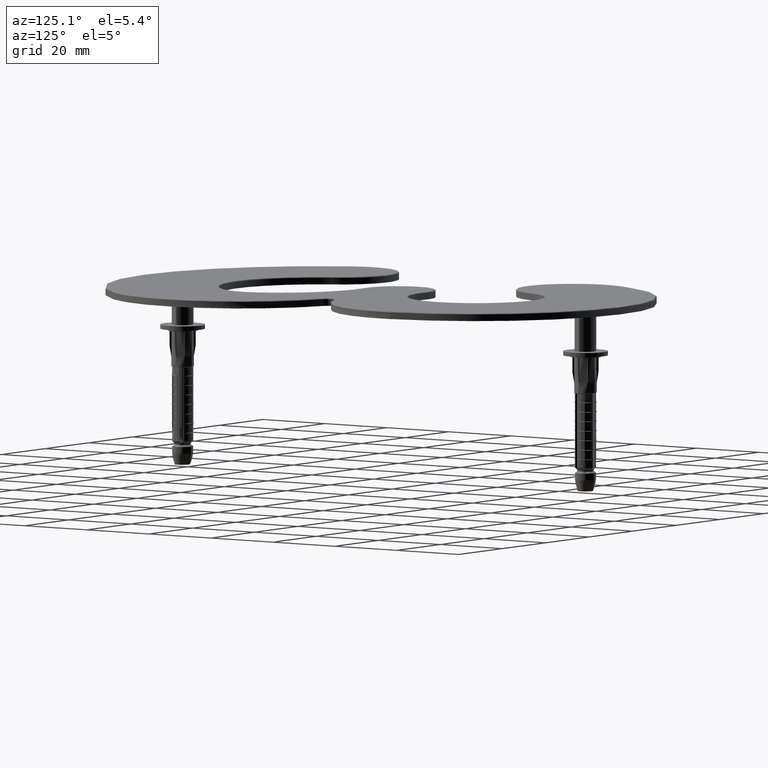
[diagram: clean part render]
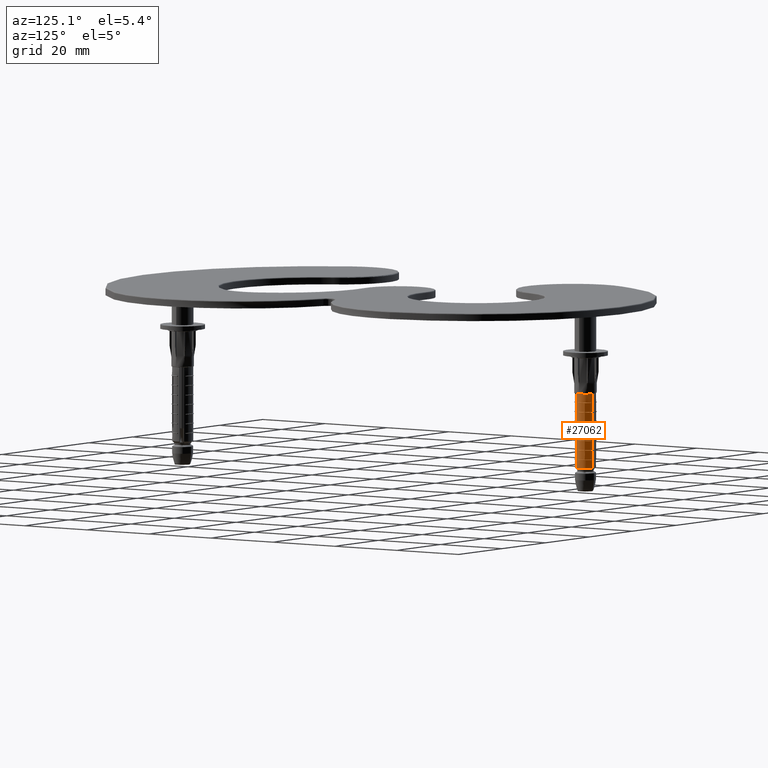
[diagram: same view with one face highlighted and labeled with its STEP entity id]
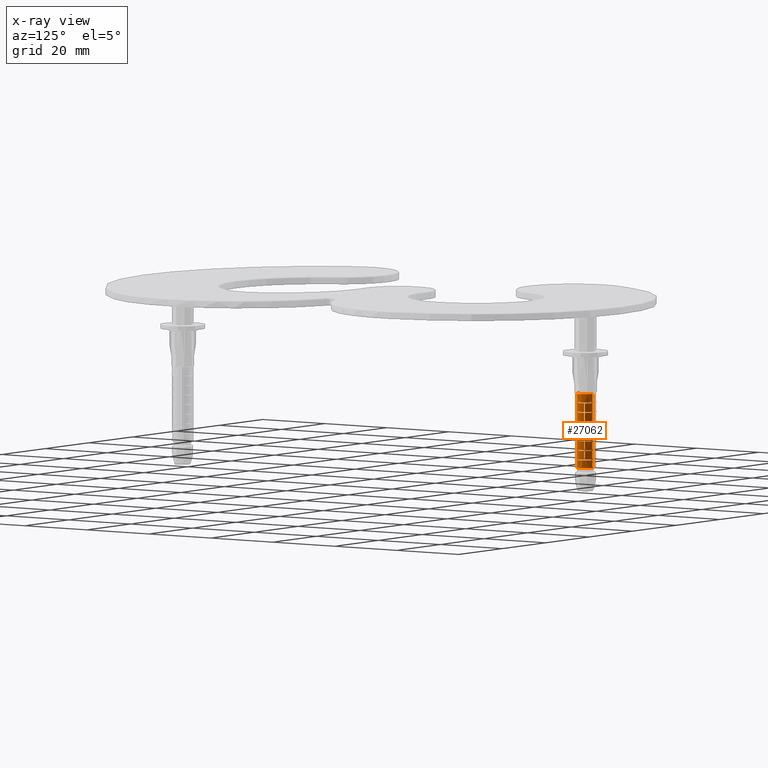
[diagram: x-ray of the same camera — body ghosted, the highlighted face saturated]
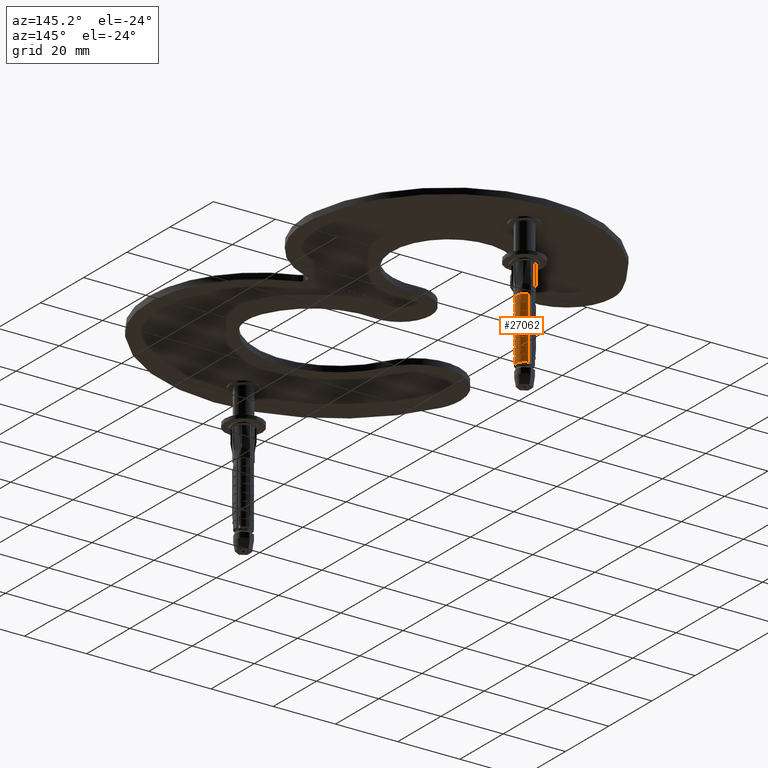
[diagram: same view with one face highlighted and labeled with its STEP entity id]
A machine part, auxiliary view. The second image highlights one B-rep face of the part: STEP entity #27062.
The next image is the same camera in x-ray: the body ghosted, the highlighted face saturated — about 0% of this face is hidden behind the body in this view.
A second angle (auxiliary view) of the same face is appended — the face is thin or edge-on in the first view.
In plain terms, the highlighted cylindrical surface (edge-blend (fillet) strip) has radius 2.8 mm, axis along (0, 0, -1).
Its self-contained STEP definition (entity closure, byte-faithful):
#65 = AXIS2_PLACEMENT_3D ( 'NONE', #25429, #28501, #15613 ) ;
#173 = CIRCLE ( 'NONE', #17702, 2.799999999999999822 ) ;
#268 = EDGE_CURVE ( 'NONE', #26986, #39906, #3357, .T. ) ;
#352 = ORIENTED_EDGE ( 'NONE', *, *, #16578, .T. ) ;
#477 = LINE ( 'NONE', #7648, #12536 ) ;
#674 = EDGE_CURVE ( 'NONE', #8486, #21390, #30721, .T. ) ;
#730 = EDGE_CURVE ( 'NONE', #33540, #10104, #6215, .T. ) ;
#837 = CARTESIAN_POINT ( 'NONE',  ( -2.483748580118025018, -1.292668940897744312, -26.50506116889642172 ) ) ;
#971 = CARTESIAN_POINT ( 'NONE',  ( -2.467480486578948362, -1.323477802777908829, -27.28203077829557088 ) ) ;
#988 = VECTOR ( 'NONE', #21612, 1000.000000000000000 ) ;
#1128 = EDGE_CURVE ( 'NONE', #7125, #19105, #32673, .T. ) ;
#1188 = VERTEX_POINT ( 'NONE', #20855 ) ;
#1309 = EDGE_CURVE ( 'NONE', #39906, #13116, #28770, .T. ) ;
#1331 = CARTESIAN_POINT ( 'NONE',  ( -1.016432192480564156, -2.608997048309782407, -15.05000000000000071 ) ) ;
#1385 = ORIENTED_EDGE ( 'NONE', *, *, #8401, .T. ) ;
#1460 = VERTEX_POINT ( 'NONE', #35490 ) ;
#1509 = CARTESIAN_POINT ( 'NONE',  ( 0.000000000000000000, -2.449293598294708880E-16, -36.00000000000000000 ) ) ;
#1647 = CARTESIAN_POINT ( 'NONE',  ( -2.361358431559908322, -1.504654896546355980, -12.52500000000000213 ) ) ;
#1967 = CARTESIAN_POINT ( 'NONE',  ( 1.256626439908438660E-16, -1.157380840337134382E-16, -27.67499999999999361 ) ) ;
#2004 = DIRECTION ( 'NONE',  ( 0.8660254037844433705, 0.4999999999999920064, 0.000000000000000000 ) ) ;
#2030 = CIRCLE ( 'NONE', #16887, 2.799999999999999378 ) ;
#2121 = CARTESIAN_POINT ( 'NONE',  ( -2.361358431559908322, -1.504654896546355980, -17.57499999999999929 ) ) ;
#2165 = EDGE_CURVE ( 'NONE', #9385, #20533, #12363, .T. ) ;
#2203 = VECTOR ( 'NONE', #31110, 1000.000000000000000 ) ;
#2243 = DIRECTION ( 'NONE',  ( 0.8660254037844433705, 0.4999999999999920064, 0.000000000000000000 ) ) ;
#2307 = VERTEX_POINT ( 'NONE', #2121 ) ;
#2333 = ORIENTED_EDGE ( 'NONE', *, *, #19314, .T. ) ;
#2405 = CARTESIAN_POINT ( 'NONE',  ( -2.369438809451833272, -1.491903281495504885, -26.99099585964414771 ) ) ;
#2451 = EDGE_CURVE ( 'NONE', #24245, #20029, #26290, .T. ) ;
#2594 = CARTESIAN_POINT ( 'NONE',  ( 5.687171150805130437E-17, -5.238010849222262684E-17, -12.52500000000000213 ) ) ;
#2803 = CARTESIAN_POINT ( 'NONE',  ( -2.361358431559908766, -1.504654896546356424, -26.31052289814725853 ) ) ;
#2845 = ORIENTED_EDGE ( 'NONE', *, *, #9580, .T. ) ;
#3001 = AXIS2_PLACEMENT_3D ( 'NONE', #31804, #13402, #22990 ) ;
#3014 = ORIENTED_EDGE ( 'NONE', *, *, #9098, .F. ) ;
#3093 = FACE_BOUND ( 'NONE', #24184, .T. ) ;
#3295 = VECTOR ( 'NONE', #10783, 1000.000000000000000 ) ;
#3357 = CIRCLE ( 'NONE', #65, 2.799999999999999378 ) ;
#3374 = DIRECTION ( 'NONE',  ( -0.000000000000000000, -6.803593328596414068E-18, -1.000000000000000000 ) ) ;
#3501 = CARTESIAN_POINT ( 'NONE',  ( -2.767673818475161696, 0.4242424242424543968, -22.42499999999999716 ) ) ;
#3755 = CARTESIAN_POINT ( 'NONE',  ( -2.483748580117768778, -1.292668940898234364, -12.52500000000000213 ) ) ;
#3781 = CARTESIAN_POINT ( 'NONE',  ( -2.361358431559908766, -1.504654896546356424, -25.14999999999999858 ) ) ;
#4007 = CARTESIAN_POINT ( 'NONE',  ( -2.767673818475162140, 0.4242424242424544523, -36.00000000000000000 ) ) ;
#4138 = AXIS2_PLACEMENT_3D ( 'NONE', #23589, #17814, #11181 ) ;
#4153 = ORIENTED_EDGE ( 'NONE', *, *, #31916, .F. ) ;
#4176 = CARTESIAN_POINT ( 'NONE',  ( -2.460687915453515284, -1.336044528726880287, -24.94999999999999574 ) ) ;
#4200 = VECTOR ( 'NONE', #13384, 1000.000000000000000 ) ;
#4262 = DIRECTION ( 'NONE',  ( -0.000000000000000000, -6.803593328596414068E-18, -1.000000000000000000 ) ) ;
#4265 = DIRECTION ( 'NONE',  ( 0.000000000000000000, 1.000000000000000000, 0.000000000000000000 ) ) ;
#4479 = CARTESIAN_POINT ( 'NONE',  ( -2.483748580117769222, -1.292668940898235030, -36.00000000000000000 ) ) ;
#4537 = CARTESIAN_POINT ( 'NONE',  ( -2.767673818475162140, 0.4242424242424546188, -36.00000000000000000 ) ) ;
#4556 = DIRECTION ( 'NONE',  ( -4.540655609425253692E-18, 4.182044590197414905E-18, 1.000000000000000000 ) ) ;
#4720 = ORIENTED_EDGE ( 'NONE', *, *, #26005, .F. ) ;
#4793 = CARTESIAN_POINT ( 'NONE',  ( -2.767673818475162140, 0.4242424242424544523, -22.62500000000000000 ) ) ;
#4987 = ORIENTED_EDGE ( 'NONE', *, *, #5183, .T. ) ;
#5183 = EDGE_CURVE ( 'NONE', #6610, #18617, #173, .T. ) ;
#5445 = CIRCLE ( 'NONE', #3001, 2.799999999999999378 ) ;
#5508 = EDGE_CURVE ( 'NONE', #14026, #32257, #6935, .T. ) ;
#5527 = ORIENTED_EDGE ( 'NONE', *, *, #2165, .T. ) ;
#5540 = DIRECTION ( 'NONE',  ( -4.540655609425253692E-18, 4.182044590197414905E-18, 1.000000000000000000 ) ) ;
#5637 = DIRECTION ( 'NONE',  ( 0.000000000000000000, 1.000000000000000000, 0.000000000000000000 ) ) ;
#5903 = DIRECTION ( 'NONE',  ( -0.000000000000000000, -6.803593328596413297E-18, -1.000000000000000000 ) ) ;
#5998 = VERTEX_POINT ( 'NONE', #4176 ) ;
#6009 = CARTESIAN_POINT ( 'NONE',  ( -2.361358431559909210, -1.504654896546356424, -36.00000000000000000 ) ) ;
#6035 = CARTESIAN_POINT ( 'NONE',  ( 1.018242020413613022E-16, -9.378234993517700759E-17, -22.42499999999999716 ) ) ;
#6215 = CIRCLE ( 'NONE', #28154, 2.799999999999999822 ) ;
#6226 = DIRECTION ( 'NONE',  ( 0.000000000000000000, 6.803593328596414068E-18, 1.000000000000000000 ) ) ;
#6537 = EDGE_CURVE ( 'NONE', #22645, #33295, #29464, .T. ) ;
#6576 = CARTESIAN_POINT ( 'NONE',  ( -2.767673818475162140, 0.4242424242424543412, -36.00000000000000000 ) ) ;
#6610 = VERTEX_POINT ( 'NONE', #26979 ) ;
#6687 = CARTESIAN_POINT ( 'NONE',  ( -2.361358431559909210, -1.504654896546356424, -36.00000000000000000 ) ) ;
#6719 = AXIS2_PLACEMENT_3D ( 'NONE', #32496, #38721, #2004 ) ;
#6763 = LINE ( 'NONE', #7407, #17343 ) ;
#6779 = CARTESIAN_POINT ( 'NONE',  ( -2.482270526863567195, -1.295529128873127211, -26.69959461916819521 ) ) ;
#6786 = LINE ( 'NONE', #35605, #23167 ) ;
#6834 = DIRECTION ( 'NONE',  ( -4.540655609425253692E-18, 4.182044590197414905E-18, 1.000000000000000000 ) ) ;
#6935 = CIRCLE ( 'NONE', #29036, 2.799999999999999822 ) ;
#6978 = CARTESIAN_POINT ( 'NONE',  ( 1.132893574551600419E-16, -1.043420125254254854E-16, -24.94999999999999574 ) ) ;
#6991 = EDGE_CURVE ( 'NONE', #33295, #32444, #38094, .T. ) ;
#7048 = VERTEX_POINT ( 'NONE', #28702 ) ;
#7124 = CARTESIAN_POINT ( 'NONE',  ( 6.833686692185005643E-17, -6.293977108247109848E-17, -15.05000000000000071 ) ) ;
#7125 = VERTEX_POINT ( 'NONE', #22707 ) ;
#7248 = VECTOR ( 'NONE', #22757, 1000.000000000000000 ) ;
#7403 = ORIENTED_EDGE ( 'NONE', *, *, #30105, .T. ) ;
#7407 = CARTESIAN_POINT ( 'NONE',  ( -2.361358431559909210, -1.504654896546356424, -36.00000000000000000 ) ) ;
#7536 = DIRECTION ( 'NONE',  ( 0.000000000000000000, 6.803593328596414068E-18, 1.000000000000000000 ) ) ;
#7589 = CARTESIAN_POINT ( 'NONE',  ( -2.393379353113320729, -1.453181087163902374, -27.47499999999999076 ) ) ;
#7648 = CARTESIAN_POINT ( 'NONE',  ( -2.767673818475162140, 0.4242424242424546743, -36.00000000000000000 ) ) ;
#7763 = CIRCLE ( 'NONE', #22651, 2.799999999999999378 ) ;
#7881 = CARTESIAN_POINT ( 'NONE',  ( -2.767673818475161251, 0.4242424242424545078, -17.37499999999999645 ) ) ;
#7908 = CARTESIAN_POINT ( 'NONE',  ( -2.483748580117768778, -1.292668940898234364, -14.84999999999999964 ) ) ;
#8028 = DIRECTION ( 'NONE',  ( -4.540655609425253692E-18, 4.182044590197414905E-18, 1.000000000000000000 ) ) ;
#8113 = DIRECTION ( 'NONE',  ( 0.000000000000000000, 1.000000000000000000, 0.000000000000000000 ) ) ;
#8122 = CARTESIAN_POINT ( 'NONE',  ( -1.016432192480563490, -2.608997048309781519, -27.47499999999999076 ) ) ;
#8151 = DIRECTION ( 'NONE',  ( 0.8660254037844433705, 0.4999999999999920064, 0.000000000000000000 ) ) ;
#8401 = EDGE_CURVE ( 'NONE', #8996, #31322, #15409, .T. ) ;
#8450 = CARTESIAN_POINT ( 'NONE',  ( -2.379905641839956676, -1.475161883330798451, -27.28203077829503442 ) ) ;
#8475 = EDGE_CURVE ( 'NONE', #24148, #20029, #6786, .T. ) ;
#8486 = VERTEX_POINT ( 'NONE', #20340 ) ;
#8502 = VERTEX_POINT ( 'NONE', #1331 ) ;
#8555 = VERTEX_POINT ( 'NONE', #35186 ) ;
#8624 = DIRECTION ( 'NONE',  ( -4.540655609425253692E-18, 4.182044590197414905E-18, 1.000000000000000000 ) ) ;
#8650 = LINE ( 'NONE', #32294, #31224 ) ;
#8725 = CARTESIAN_POINT ( 'NONE',  ( -2.372170073811461055, -1.487569355360297108, -27.08807541499458083 ) ) ;
#8752 = CARTESIAN_POINT ( 'NONE',  ( 1.027323331632463865E-16, -9.461875885321650721E-17, -22.62500000000000000 ) ) ;
#8765 = VECTOR ( 'NONE', #38230, 1000.000000000000000 ) ;
#8996 = VERTEX_POINT ( 'NONE', #29494 ) ;
#9051 = VERTEX_POINT ( 'NONE', #32932 ) ;
#9098 = EDGE_CURVE ( 'NONE', #34903, #12291, #26495, .T. ) ;
#9119 = CIRCLE ( 'NONE', #34537, 2.799999999999999378 ) ;
#9141 = ORIENTED_EDGE ( 'NONE', *, *, #16824, .T. ) ;
#9250 = ORIENTED_EDGE ( 'NONE', *, *, #32521, .T. ) ;
#9254 = DIRECTION ( 'NONE',  ( 0.000000000000000000, 6.803593328596414068E-18, 1.000000000000000000 ) ) ;
#9366 = VERTEX_POINT ( 'NONE', #19664 ) ;
#9382 = AXIS2_PLACEMENT_3D ( 'NONE', #33172, #5540, #30364 ) ;
#9385 = VERTEX_POINT ( 'NONE', #28483 ) ;
#9413 = EDGE_CURVE ( 'NONE', #27152, #8502, #10121, .T. ) ;
#9580 = EDGE_CURVE ( 'NONE', #12042, #5998, #38997, .T. ) ;
#9604 = CARTESIAN_POINT ( 'NONE',  ( -2.476745546490385141, -1.306042560950300802, -26.99099585964534498 ) ) ;
#9721 = EDGE_CURVE ( 'NONE', #26193, #8996, #11052, .T. ) ;
#9760 = CARTESIAN_POINT ( 'NONE',  ( 1.018242020413613022E-16, -9.378234993517700759E-17, -22.42499999999999716 ) ) ;
#9799 = EDGE_CURVE ( 'NONE', #29342, #15472, #27434, .T. ) ;
#9890 = VERTEX_POINT ( 'NONE', #3501 ) ;
#9975 = DIRECTION ( 'NONE',  ( 0.8660254037844433705, 0.4999999999999920064, 0.000000000000000000 ) ) ;
#9984 = CARTESIAN_POINT ( 'NONE',  ( -2.455181414339814072, -1.346136777107122207, -27.47499999999999076 ) ) ;
#10038 = DIRECTION ( 'NONE',  ( -4.540655609425253692E-18, 4.182044590197414905E-18, 1.000000000000000000 ) ) ;
#10040 = EDGE_CURVE ( 'NONE', #16712, #26986, #477, .T. ) ;
#10104 = VERTEX_POINT ( 'NONE', #35033 ) ;
#10121 = CIRCLE ( 'NONE', #24764, 2.799999999999999378 ) ;
#10133 = DIRECTION ( 'NONE',  ( -5.892084659582852829E-18, -1.020538999289456486E-17, -1.000000000000000000 ) ) ;
#10163 = CIRCLE ( 'NONE', #14129, 2.799999999999999378 ) ;
#10195 = ORIENTED_EDGE ( 'NONE', *, *, #23270, .T. ) ;
#10252 = ORIENTED_EDGE ( 'NONE', *, *, #26898, .T. ) ;
#10279 = DIRECTION ( 'NONE',  ( 0.8660254037844433705, 0.4999999999999920064, 0.000000000000000000 ) ) ;
#10296 = EDGE_CURVE ( 'NONE', #21646, #25433, #17813, .T. ) ;
#10439 = CARTESIAN_POINT ( 'NONE',  ( 1.132893574551600419E-16, -1.043420125254254854E-16, -24.94999999999999574 ) ) ;
#10443 = EDGE_CURVE ( 'NONE', #2307, #8486, #37469, .T. ) ;
#10475 = ORIENTED_EDGE ( 'NONE', *, *, #9413, .F. ) ;
#10580 = DIRECTION ( 'NONE',  ( -4.540655609425253692E-18, 4.182044590197414905E-18, 1.000000000000000000 ) ) ;
#10583 = VECTOR ( 'NONE', #3374, 1000.000000000000000 ) ;
#10676 = EDGE_CURVE ( 'NONE', #8555, #37857, #8650, .T. ) ;
#10783 = DIRECTION ( 'NONE',  ( 0.000000000000000000, 6.803593328596414068E-18, 1.000000000000000000 ) ) ;
#10805 = CARTESIAN_POINT ( 'NONE',  ( 1.141974885770451016E-16, -1.051784214434649850E-16, -25.14999999999999858 ) ) ;
#10885 = CARTESIAN_POINT ( 'NONE',  ( -2.767673818475162140, 0.4242424242424546743, -36.00000000000000000 ) ) ;
#11026 = EDGE_CURVE ( 'NONE', #16712, #33995, #9119, .T. ) ;
#11052 = CIRCLE ( 'NONE', #17056, 2.799999999999999822 ) ;
#11117 = VECTOR ( 'NONE', #17373, 1000.000000000000000 ) ;
#11140 = CARTESIAN_POINT ( 'NONE',  ( -2.361358431559909210, -1.504654896546356424, -36.00000000000000000 ) ) ;
#11181 = DIRECTION ( 'NONE',  ( 0.8660254037844433705, 0.4999999999999920064, 0.000000000000000000 ) ) ;
#11275 = CARTESIAN_POINT ( 'NONE',  ( 7.889389121376377345E-17, -7.266302475468007665E-17, -17.37499999999999645 ) ) ;
#11370 = AXIS2_PLACEMENT_3D ( 'NONE', #6035, #27659, #15407 ) ;
#11669 = AXIS2_PLACEMENT_3D ( 'NONE', #2594, #20913, #30396 ) ;
#11748 = ORIENTED_EDGE ( 'NONE', *, *, #39843, .T. ) ;
#12030 = LINE ( 'NONE', #11140, #28375 ) ;
#12042 = VERTEX_POINT ( 'NONE', #13326 ) ;
#12059 = CARTESIAN_POINT ( 'NONE',  ( -2.363096400378637441, -1.501944770892664760, -26.69959461916634424 ) ) ;
#12218 = AXIS2_PLACEMENT_3D ( 'NONE', #1509, #29197, #8113 ) ;
#12221 = ORIENTED_EDGE ( 'NONE', *, *, #29528, .T. ) ;
#12291 = VERTEX_POINT ( 'NONE', #14779 ) ;
#12319 = VERTEX_POINT ( 'NONE', #38999 ) ;
#12348 = LINE ( 'NONE', #24659, #32988 ) ;
#12363 = CIRCLE ( 'NONE', #39819, 2.799999999999999378 ) ;
#12462 = EDGE_CURVE ( 'NONE', #10104, #5998, #37881, .T. ) ;
#12536 = VECTOR ( 'NONE', #26464, 1000.000000000000000 ) ;
#12617 = VECTOR ( 'NONE', #30154, 1000.000000000000000 ) ;
#12994 = EDGE_CURVE ( 'NONE', #9051, #39492, #30869, .T. ) ;
#13105 = VECTOR ( 'NONE', #22409, 1000.000000000000000 ) ;
#13116 = VERTEX_POINT ( 'NONE', #3755 ) ;
#13175 = DIRECTION ( 'NONE',  ( -4.540655609425253692E-18, 4.182044590197414905E-18, 1.000000000000000000 ) ) ;
#13217 = EDGE_CURVE ( 'NONE', #28055, #12319, #23313, .T. ) ;
#13271 = CARTESIAN_POINT ( 'NONE',  ( 0.000000000000000000, -2.024069015257432827E-16, -29.74999999999999645 ) ) ;
#13326 = CARTESIAN_POINT ( 'NONE',  ( -2.767673818475161696, 0.4242424242424543968, -24.94999999999999574 ) ) ;
#13384 = DIRECTION ( 'NONE',  ( 0.000000000000000000, 6.803593328596414068E-18, 1.000000000000000000 ) ) ;
#13402 = DIRECTION ( 'NONE',  ( -4.540655609425253692E-18, 4.182044590197414905E-18, 1.000000000000000000 ) ) ;
#13478 = CIRCLE ( 'NONE', #39650, 2.799999999999999378 ) ;
#13533 = DIRECTION ( 'NONE',  ( 0.8660254037844433705, 0.4999999999999920064, 0.000000000000000000 ) ) ;
#13600 = ORIENTED_EDGE ( 'NONE', *, *, #23617, .T. ) ;
#13688 = B_SPLINE_CURVE_WITH_KNOTS ( 'NONE', 3,
 ( #9984, #34680, #971, #19184, #9604, #6779, #837, #37400 ),
 .UNSPECIFIED., .F., .F.,
 ( 4, 2, 2, 4 ),
 ( 0.000000000000000000, 0.0002919254474833850982, 0.0005838508949667701965, 0.001167701789933529768 ),
 .UNSPECIFIED. ) ;
#13910 = DIRECTION ( 'NONE',  ( -0.000000000000000000, -6.803593328596414068E-18, -1.000000000000000000 ) ) ;
#14026 = VERTEX_POINT ( 'NONE', #15331 ) ;
#14129 = AXIS2_PLACEMENT_3D ( 'NONE', #38898, #35915, #14550 ) ;
#14164 = EDGE_CURVE ( 'NONE', #27152, #22645, #25260, .T. ) ;
#14188 = VECTOR ( 'NONE', #33982, 1000.000000000000000 ) ;
#14355 = DIRECTION ( 'NONE',  ( 0.8660254037844433705, 0.4999999999999920064, 0.000000000000000000 ) ) ;
#14445 = DIRECTION ( 'NONE',  ( 0.8660254037844433705, 0.4999999999999920064, 0.000000000000000000 ) ) ;
#14481 = ORIENTED_EDGE ( 'NONE', *, *, #730, .F. ) ;
#14496 = CIRCLE ( 'NONE', #34707, 2.799999999999999822 ) ;
#14550 = DIRECTION ( 'NONE',  ( 0.8660254037844433705, 0.4999999999999920064, 0.000000000000000000 ) ) ;
#14779 = CARTESIAN_POINT ( 'NONE',  ( -1.016432192480563934, -2.608997048309782407, -22.62500000000000000 ) ) ;
#14890 = CARTESIAN_POINT ( 'NONE',  ( -2.483748580117769222, -1.292668940898234808, -25.14999999999999858 ) ) ;
#15331 = CARTESIAN_POINT ( 'NONE',  ( -2.361358431559908766, -1.504654896546356424, -20.10000000000000142 ) ) ;
#15407 = DIRECTION ( 'NONE',  ( 0.8660254037844433705, 0.4999999999999920064, 0.000000000000000000 ) ) ;
#15409 = LINE ( 'NONE', #34650, #7248 ) ;
#15440 = CARTESIAN_POINT ( 'NONE',  ( -1.016432192480563712, -2.608997048309782407, -36.00000000000000000 ) ) ;
#15471 = ORIENTED_EDGE ( 'NONE', *, *, #35741, .T. ) ;
#15472 = VERTEX_POINT ( 'NONE', #34025 ) ;
#15476 = VECTOR ( 'NONE', #4262, 1000.000000000000000 ) ;
#15508 = ORIENTED_EDGE ( 'NONE', *, *, #10443, .T. ) ;
#15613 = DIRECTION ( 'NONE',  ( 0.8660254037844433705, 0.4999999999999920064, 0.000000000000000000 ) ) ;
#15804 = CARTESIAN_POINT ( 'NONE',  ( -0.6222222222222225652, -2.729988920521993379, -29.74999999999999645 ) ) ;
#16173 = ORIENTED_EDGE ( 'NONE', *, *, #18168, .T. ) ;
#16268 = CARTESIAN_POINT ( 'NONE',  ( -2.361358431559908766, -1.504654896546356424, -22.42499999999999716 ) ) ;
#16388 = CARTESIAN_POINT ( 'NONE',  ( 9.126717774944759751E-17, -8.405909626296804174E-17, -20.10000000000000142 ) ) ;
#16462 = ORIENTED_EDGE ( 'NONE', *, *, #17549, .T. ) ;
#16484 = DIRECTION ( 'NONE',  ( 0.000000000000000000, 6.803593328596413297E-18, 1.000000000000000000 ) ) ;
#16565 = CARTESIAN_POINT ( 'NONE',  ( -2.483748580117768778, -1.292668940898234364, -15.05000000000000071 ) ) ;
#16578 = EDGE_CURVE ( 'NONE', #12319, #6610, #37617, .T. ) ;
#16595 = CARTESIAN_POINT ( 'NONE',  ( -2.460687915453515284, -1.336044528726880731, -27.57499999999999574 ) ) ;
#16618 = CARTESIAN_POINT ( 'NONE',  ( -2.455181414339814072, -1.346136777107122207, -27.47499999999999076 ) ) ;
#16712 = VERTEX_POINT ( 'NONE', #25582 ) ;
#16824 = EDGE_CURVE ( 'NONE', #24245, #26193, #20836, .T. ) ;
#16887 = AXIS2_PLACEMENT_3D ( 'NONE', #30248, #33448, #36416 ) ;
#17056 = AXIS2_PLACEMENT_3D ( 'NONE', #29411, #35431, #17324 ) ;
#17059 = CIRCLE ( 'NONE', #37983, 2.799999999999999822 ) ;
#17251 = ORIENTED_EDGE ( 'NONE', *, *, #13217, .T. ) ;
#17263 = CARTESIAN_POINT ( 'NONE',  ( -1.016432192480563712, -2.608997048309781963, -22.42499999999999716 ) ) ;
#17324 = DIRECTION ( 'NONE',  ( 0.8660254037844433705, 0.4999999999999920064, 0.000000000000000000 ) ) ;
#17343 = VECTOR ( 'NONE', #31451, 1000.000000000000000 ) ;
#17373 = DIRECTION ( 'NONE',  ( 0.000000000000000000, 6.803593328596414068E-18, 1.000000000000000000 ) ) ;
#17437 = ORIENTED_EDGE ( 'NONE', *, *, #19625, .T. ) ;
#17511 = VERTEX_POINT ( 'NONE', #14890 ) ;
#17549 = EDGE_CURVE ( 'NONE', #28438, #1460, #7763, .T. ) ;
#17623 = LINE ( 'NONE', #37544, #2203 ) ;
#17649 = CARTESIAN_POINT ( 'NONE',  ( -2.767673818475161251, 0.4242424242424545633, -12.32500000000000107 ) ) ;
#17702 = AXIS2_PLACEMENT_3D ( 'NONE', #13271, #16484, #4265 ) ;
#17719 = ORIENTED_EDGE ( 'NONE', *, *, #1128, .T. ) ;
#17813 = CIRCLE ( 'NONE', #11370, 2.799999999999999822 ) ;
#17814 = DIRECTION ( 'NONE',  ( -4.540655609425253692E-18, 4.182044590197414905E-18, 1.000000000000000000 ) ) ;
#17914 = DIRECTION ( 'NONE',  ( 0.8660254037844433705, 0.4999999999999920064, 0.000000000000000000 ) ) ;
#17964 = EDGE_CURVE ( 'NONE', #1188, #22003, #14496, .T. ) ;
#18089 = EDGE_CURVE ( 'NONE', #20617, #7125, #21718, .T. ) ;
#18168 = EDGE_CURVE ( 'NONE', #9366, #8555, #13478, .T. ) ;
#18174 = CARTESIAN_POINT ( 'NONE',  ( -1.016432192480563712, -2.608997048309781519, -17.37499999999999645 ) ) ;
#18211 = ORIENTED_EDGE ( 'NONE', *, *, #20690, .T. ) ;
#18362 = CARTESIAN_POINT ( 'NONE',  ( -2.767673818475162140, 0.4242424242424543968, -36.00000000000000000 ) ) ;
#18477 = ORIENTED_EDGE ( 'NONE', *, *, #36998, .T. ) ;
#18526 = FACE_OUTER_BOUND ( 'NONE', #22872, .T. ) ;
#18617 = VERTEX_POINT ( 'NONE', #15804 ) ;
#18669 = CARTESIAN_POINT ( 'NONE',  ( -1.016432192480563934, -2.608997048309781519, -19.89999999999999858 ) ) ;
#18678 = DIRECTION ( 'NONE',  ( -0.000000000000000000, -6.803593328596414068E-18, -1.000000000000000000 ) ) ;
#18865 = DIRECTION ( 'NONE',  ( -4.540655609425253692E-18, 4.182044590197414905E-18, 1.000000000000000000 ) ) ;
#18889 = DIRECTION ( 'NONE',  ( -0.000000000000000000, -6.803593328596414068E-18, -1.000000000000000000 ) ) ;
#18942 = ORIENTED_EDGE ( 'NONE', *, *, #268, .T. ) ;
#18986 = LINE ( 'NONE', #37142, #31400 ) ;
#18990 = EDGE_CURVE ( 'NONE', #27067, #9385, #12030, .T. ) ;
#19085 = DIRECTION ( 'NONE',  ( -0.000000000000000000, -6.803593328596414068E-18, -1.000000000000000000 ) ) ;
#19105 = VERTEX_POINT ( 'NONE', #7589 ) ;
#19184 = CARTESIAN_POINT ( 'NONE',  ( -2.474357888538981420, -1.310574868337798460, -27.08807541499556137 ) ) ;
#19314 = EDGE_CURVE ( 'NONE', #34903, #7048, #6763, .T. ) ;
#19486 = CARTESIAN_POINT ( 'NONE',  ( -1.016432192480564378, -2.608997048309782407, -20.10000000000000142 ) ) ;
#19625 = EDGE_CURVE ( 'NONE', #30642, #12042, #36506, .T. ) ;
#19647 = ORIENTED_EDGE ( 'NONE', *, *, #11026, .F. ) ;
#19664 = CARTESIAN_POINT ( 'NONE',  ( -2.424871130596440771, -1.399999999999977263, -12.32500000000000107 ) ) ;
#19762 = DIRECTION ( 'NONE',  ( 0.000000000000000000, 6.803593328596414068E-18, 1.000000000000000000 ) ) ;
#19943 = ORIENTED_EDGE ( 'NONE', *, *, #1309, .T. ) ;
#20029 = VERTEX_POINT ( 'NONE', #35571 ) ;
#20241 = DIRECTION ( 'NONE',  ( 0.000000000000000000, 6.803593328596414068E-18, 1.000000000000000000 ) ) ;
#20331 = VECTOR ( 'NONE', #20241, 1000.000000000000000 ) ;
#20340 = CARTESIAN_POINT ( 'NONE',  ( -2.361358431559908766, -1.504654896546356202, -19.89999999999999858 ) ) ;
#20533 = VERTEX_POINT ( 'NONE', #31834 ) ;
#20617 = VERTEX_POINT ( 'NONE', #3781 ) ;
#20661 = VECTOR ( 'NONE', #9254, 1000.000000000000000 ) ;
#20690 = EDGE_CURVE ( 'NONE', #18617, #28055, #29738, .T. ) ;
#20836 = LINE ( 'NONE', #29341, #20331 ) ;
#20855 = CARTESIAN_POINT ( 'NONE',  ( -2.767673818475162140, 0.4242424242424543412, -27.67499999999999361 ) ) ;
#20913 = DIRECTION ( 'NONE',  ( -4.540655609425253692E-18, 4.182044590197414905E-18, 1.000000000000000000 ) ) ;
#21061 = ORIENTED_EDGE ( 'NONE', *, *, #39829, .F. ) ;
#21114 = CARTESIAN_POINT ( 'NONE',  ( -2.361358431559801296, -1.504654896546524068, -26.50506116889412667 ) ) ;
#21151 = DIRECTION ( 'NONE',  ( -4.540655609425253692E-18, 4.182044590197414905E-18, 1.000000000000000000 ) ) ;
#21239 = ORIENTED_EDGE ( 'NONE', *, *, #25349, .T. ) ;
#21324 = EDGE_CURVE ( 'NONE', #1188, #36282, #37399, .T. ) ;
#21390 = VERTEX_POINT ( 'NONE', #18669 ) ;
#21393 = CARTESIAN_POINT ( 'NONE',  ( -2.767673818475161696, 0.4242424242424544523, -19.89999999999999858 ) ) ;
#21529 = ORIENTED_EDGE ( 'NONE', *, *, #9721, .T. ) ;
#21612 = DIRECTION ( 'NONE',  ( -0.000000000000000000, -6.803593328596414068E-18, -1.000000000000000000 ) ) ;
#21637 = CARTESIAN_POINT ( 'NONE',  ( -1.016432192480563712, -2.608997048309781963, -27.67499999999999361 ) ) ;
#21646 = VERTEX_POINT ( 'NONE', #16268 ) ;
#21718 = LINE ( 'NONE', #6009, #988 ) ;
#21902 = CARTESIAN_POINT ( 'NONE',  ( -2.483748580117769222, -1.292668940898235030, -36.00000000000000000 ) ) ;
#22003 = VERTEX_POINT ( 'NONE', #21637 ) ;
#22060 = AXIS2_PLACEMENT_3D ( 'NONE', #22436, #6834, #37186 ) ;
#22409 = DIRECTION ( 'NONE',  ( -0.000000000000000000, -6.803593328596414068E-18, -1.000000000000000000 ) ) ;
#22436 = CARTESIAN_POINT ( 'NONE',  ( 9.126717774944759751E-17, -8.405909626296804174E-17, -20.10000000000000142 ) ) ;
#22499 = ORIENTED_EDGE ( 'NONE', *, *, #6991, .T. ) ;
#22512 = DIRECTION ( 'NONE',  ( -4.540655609425253692E-18, 4.182044590197414905E-18, 1.000000000000000000 ) ) ;
#22526 = ORIENTED_EDGE ( 'NONE', *, *, #8475, .T. ) ;
#22645 = VERTEX_POINT ( 'NONE', #31608 ) ;
#22651 = AXIS2_PLACEMENT_3D ( 'NONE', #11275, #26887, #32756 ) ;
#22655 = ORIENTED_EDGE ( 'NONE', *, *, #36453, .F. ) ;
#22707 = CARTESIAN_POINT ( 'NONE',  ( -2.361358431559908766, -1.504654896546356424, -26.31052289814725853 ) ) ;
#22757 = DIRECTION ( 'NONE',  ( 0.000000000000000000, 6.803593328596414068E-18, 1.000000000000000000 ) ) ;
#22841 = ORIENTED_EDGE ( 'NONE', *, *, #18990, .T. ) ;
#22860 = DIRECTION ( 'NONE',  ( 0.000000000000000000, 6.803593328596414068E-18, 1.000000000000000000 ) ) ;
#22872 = EDGE_LOOP ( 'NONE', ( #4987, #18211, #17251, #352 ) ) ;
#22990 = DIRECTION ( 'NONE',  ( 0.8660254037844433705, 0.4999999999999920064, 0.000000000000000000 ) ) ;
#23016 = CARTESIAN_POINT ( 'NONE',  ( 5.596358038616625703E-17, -5.154369957418313338E-17, -12.32500000000000107 ) ) ;
#23019 = DIRECTION ( 'NONE',  ( 0.8660254037844433705, 0.4999999999999920064, 0.000000000000000000 ) ) ;
#23060 = ORIENTED_EDGE ( 'NONE', *, *, #38254, .T. ) ;
#23064 = CARTESIAN_POINT ( 'NONE',  ( -0.6222222222222226762, -2.729988920521994267, -36.00000000000000000 ) ) ;
#23140 = DIRECTION ( 'NONE',  ( -4.540655609425253692E-18, 4.182044590197414905E-18, 1.000000000000000000 ) ) ;
#23157 = CARTESIAN_POINT ( 'NONE',  ( -2.767673818475162140, 0.4242424242424545078, -20.10000000000000142 ) ) ;
#23167 = VECTOR ( 'NONE', #7536, 1000.000000000000000 ) ;
#23270 = EDGE_CURVE ( 'NONE', #20533, #8502, #17623, .T. ) ;
#23313 = CIRCLE ( 'NONE', #34819, 2.799999999999999822 ) ;
#23350 = LINE ( 'NONE', #28104, #14188 ) ;
#23457 = ORIENTED_EDGE ( 'NONE', *, *, #31678, .T. ) ;
#23475 = EDGE_CURVE ( 'NONE', #27067, #37857, #28158, .T. ) ;
#23589 = CARTESIAN_POINT ( 'NONE',  ( 1.027323331632463865E-16, -9.461875885321650721E-17, -22.62500000000000000 ) ) ;
#23617 = EDGE_CURVE ( 'NONE', #33540, #9890, #38781, .T. ) ;
#23631 = CIRCLE ( 'NONE', #39395, 2.799999999999999822 ) ;
#23870 = VECTOR ( 'NONE', #6226, 1000.000000000000000 ) ;
#23970 = ORIENTED_EDGE ( 'NONE', *, *, #5508, .F. ) ;
#24148 = VERTEX_POINT ( 'NONE', #35321 ) ;
#24184 = EDGE_LOOP ( 'NONE', ( #31217, #17719, #23457, #10252, #31099, #30678, #23060, #9250, #18477, #4720, #17437, #2845, #28081, #14481, #13600, #31459, #22526, #30512, #9141, #21529, #1385, #32118, #11748, #16462, #7403, #19647, #36206, #18942, #19943, #22655, #29037, #25161, #16173, #25672, #31077, #22841, #5527, #10195, #10475, #33161, #26917, #22499, #21061, #15508, #27293, #12221, #23970, #15471, #33952, #21239, #3014, #2333, #34426, #35387, #4153 ) ) ;
#24218 = DIRECTION ( 'NONE',  ( 0.8660254037844433705, 0.4999999999999920064, 0.000000000000000000 ) ) ;
#24245 = VERTEX_POINT ( 'NONE', #23157 ) ;
#24659 = CARTESIAN_POINT ( 'NONE',  ( -2.361358431559909210, -1.504654896546356424, -36.00000000000000000 ) ) ;
#24764 = AXIS2_PLACEMENT_3D ( 'NONE', #25410, #13175, #17914 ) ;
#24776 = VECTOR ( 'NONE', #18889, 1000.000000000000000 ) ;
#25084 = CARTESIAN_POINT ( 'NONE',  ( -2.361358431559908766, -1.504654896546356424, -22.62500000000000000 ) ) ;
#25161 = ORIENTED_EDGE ( 'NONE', *, *, #30163, .T. ) ;
#25179 = CARTESIAN_POINT ( 'NONE',  ( 1.247545128689588310E-16, -1.149016751156739262E-16, -27.47499999999999076 ) ) ;
#25260 = LINE ( 'NONE', #31052, #24776 ) ;
#25309 = VERTEX_POINT ( 'NONE', #39554 ) ;
#25349 = EDGE_CURVE ( 'NONE', #25433, #12291, #23350, .T. ) ;
#25410 = CARTESIAN_POINT ( 'NONE',  ( 6.833686692185005643E-17, -6.293977108247109848E-17, -15.05000000000000071 ) ) ;
#25429 = CARTESIAN_POINT ( 'NONE',  ( 6.742873579996503373E-17, -6.210336216443161118E-17, -14.84999999999999964 ) ) ;
#25433 = VERTEX_POINT ( 'NONE', #17263 ) ;
#25582 = CARTESIAN_POINT ( 'NONE',  ( -2.767673818475162140, 0.4242424242424547298, -15.05000000000000071 ) ) ;
#25602 = CARTESIAN_POINT ( 'NONE',  ( -1.016432192480564156, -2.608997048309781963, -36.00000000000000000 ) ) ;
#25672 = ORIENTED_EDGE ( 'NONE', *, *, #10676, .T. ) ;
#25689 = DIRECTION ( 'NONE',  ( -4.540655609425253692E-18, 4.182044590197414905E-18, 1.000000000000000000 ) ) ;
#26005 = EDGE_CURVE ( 'NONE', #30642, #17511, #17059, .T. ) ;
#26144 = DIRECTION ( 'NONE',  ( -4.540655609425253692E-18, 4.182044590197414905E-18, 1.000000000000000000 ) ) ;
#26193 = VERTEX_POINT ( 'NONE', #21393 ) ;
#26290 = CIRCLE ( 'NONE', #22060, 2.799999999999999822 ) ;
#26464 = DIRECTION ( 'NONE',  ( 0.000000000000000000, 6.803593328596414068E-18, 1.000000000000000000 ) ) ;
#26495 = CIRCLE ( 'NONE', #4138, 2.799999999999999822 ) ;
#26887 = DIRECTION ( 'NONE',  ( -4.540655609425253692E-18, 4.182044590197414905E-18, 1.000000000000000000 ) ) ;
#26898 = EDGE_CURVE ( 'NONE', #28498, #22003, #18986, .T. ) ;
#26917 = ORIENTED_EDGE ( 'NONE', *, *, #6537, .T. ) ;
#26927 = VECTOR ( 'NONE', #19085, 1000.000000000000000 ) ;
#26979 = CARTESIAN_POINT ( 'NONE',  ( -2.675350868333212340, 0.8261342090173533492, -29.74999999999999645 ) ) ;
#26986 = VERTEX_POINT ( 'NONE', #28921 ) ;
#27062 = ADVANCED_FACE ( 'NONE', ( #18526, #3093 ), #39617, .T. ) ;
#27067 = VERTEX_POINT ( 'NONE', #1647 ) ;
#27144 = AXIS2_PLACEMENT_3D ( 'NONE', #27296, #8624, #30102 ) ;
#27152 = VERTEX_POINT ( 'NONE', #29488 ) ;
#27196 = AXIS2_PLACEMENT_3D ( 'NONE', #9760, #31259, #10279 ) ;
#27293 = ORIENTED_EDGE ( 'NONE', *, *, #674, .T. ) ;
#27296 = CARTESIAN_POINT ( 'NONE',  ( 5.687171150805130437E-17, -5.238010849222262684E-17, -12.52500000000000213 ) ) ;
#27338 = VECTOR ( 'NONE', #10133, 1000.000000000000000 ) ;
#27351 = DIRECTION ( 'NONE',  ( -0.000000000000000000, -6.803593328596414068E-18, -1.000000000000000000 ) ) ;
#27403 = CARTESIAN_POINT ( 'NONE',  ( -2.384165743643222424, -1.468355839208442148, -27.37920234786985674 ) ) ;
#27434 = LINE ( 'NONE', #15440, #10583 ) ;
#27550 = EDGE_CURVE ( 'NONE', #9890, #24148, #29509, .T. ) ;
#27659 = DIRECTION ( 'NONE',  ( -4.540655609425253692E-18, 4.182044590197414905E-18, 1.000000000000000000 ) ) ;
#27756 = DIRECTION ( 'NONE',  ( -4.540655609425253692E-18, 4.182044590197414905E-18, 1.000000000000000000 ) ) ;
#27775 = EDGE_CURVE ( 'NONE', #25309, #31322, #2030, .T. ) ;
#28055 = VERTEX_POINT ( 'NONE', #28594 ) ;
#28081 = ORIENTED_EDGE ( 'NONE', *, *, #12462, .F. ) ;
#28104 = CARTESIAN_POINT ( 'NONE',  ( -1.016432192480563712, -2.608997048309782407, -36.00000000000000000 ) ) ;
#28154 = AXIS2_PLACEMENT_3D ( 'NONE', #8752, #21151, #24218 ) ;
#28158 = CIRCLE ( 'NONE', #11669, 2.799999999999999378 ) ;
#28342 = VECTOR ( 'NONE', #19762, 1000.000000000000000 ) ;
#28375 = VECTOR ( 'NONE', #38852, 1000.000000000000000 ) ;
#28438 = VERTEX_POINT ( 'NONE', #7881 ) ;
#28451 = DIRECTION ( 'NONE',  ( 0.8660254037844433705, 0.4999999999999920064, 0.000000000000000000 ) ) ;
#28483 = CARTESIAN_POINT ( 'NONE',  ( -2.361358431559908322, -1.504654896546355980, -14.84999999999999964 ) ) ;
#28498 = VERTEX_POINT ( 'NONE', #8122 ) ;
#28501 = DIRECTION ( 'NONE',  ( -4.540655609425253692E-18, 4.182044590197414905E-18, 1.000000000000000000 ) ) ;
#28594 = CARTESIAN_POINT ( 'NONE',  ( -0.6222222222222225652, -2.729988920521993823, -10.09999999999999787 ) ) ;
#28702 = CARTESIAN_POINT ( 'NONE',  ( -2.361358431559908766, -1.504654896546356424, -24.94999999999999574 ) ) ;
#28770 = LINE ( 'NONE', #21902, #20661 ) ;
#28921 = CARTESIAN_POINT ( 'NONE',  ( -2.767673818475161251, 0.4242424242424545633, -14.84999999999999964 ) ) ;
#29036 = AXIS2_PLACEMENT_3D ( 'NONE', #16388, #25689, #23019 ) ;
#29037 = ORIENTED_EDGE ( 'NONE', *, *, #12994, .T. ) ;
#29197 = DIRECTION ( 'NONE',  ( -0.000000000000000000, -6.803593328596413297E-18, -1.000000000000000000 ) ) ;
#29341 = CARTESIAN_POINT ( 'NONE',  ( -2.767673818475162140, 0.4242424242424544523, -36.00000000000000000 ) ) ;
#29342 = VERTEX_POINT ( 'NONE', #39488 ) ;
#29377 = AXIS2_PLACEMENT_3D ( 'NONE', #33639, #27756, #33241 ) ;
#29411 = CARTESIAN_POINT ( 'NONE',  ( 9.035904662756253783E-17, -8.322268734492854212E-17, -19.89999999999999858 ) ) ;
#29464 = CIRCLE ( 'NONE', #38609, 2.799999999999999378 ) ;
#29478 = LINE ( 'NONE', #25602, #13105 ) ;
#29488 = CARTESIAN_POINT ( 'NONE',  ( -2.361358431559908322, -1.504654896546355980, -15.05000000000000071 ) ) ;
#29494 = CARTESIAN_POINT ( 'NONE',  ( -2.483748580117769222, -1.292668940898234586, -19.89999999999999858 ) ) ;
#29509 = CIRCLE ( 'NONE', #27196, 2.799999999999999822 ) ;
#29528 = EDGE_CURVE ( 'NONE', #21390, #32257, #29478, .T. ) ;
#29738 = LINE ( 'NONE', #23064, #3295 ) ;
#29812 = CARTESIAN_POINT ( 'NONE',  ( 6.742873579996503373E-17, -6.210336216443161118E-17, -14.84999999999999964 ) ) ;
#29908 = CARTESIAN_POINT ( 'NONE',  ( -1.016432192480564156, -2.608997048309782407, -17.57499999999999929 ) ) ;
#30063 = CARTESIAN_POINT ( 'NONE',  ( 0.000000000000000000, -6.871629261882377608E-17, -10.09999999999999787 ) ) ;
#30102 = DIRECTION ( 'NONE',  ( 0.8660254037844433705, 0.4999999999999920064, 0.000000000000000000 ) ) ;
#30105 = EDGE_CURVE ( 'NONE', #1460, #33995, #39548, .T. ) ;
#30154 = DIRECTION ( 'NONE',  ( -0.000000000000000000, -6.803593328596414068E-18, -1.000000000000000000 ) ) ;
#30155 = AXIS2_PLACEMENT_3D ( 'NONE', #6978, #18865, #28451 ) ;
#30163 = EDGE_CURVE ( 'NONE', #39492, #9366, #10163, .T. ) ;
#30200 = CARTESIAN_POINT ( 'NONE',  ( -2.393379353113320729, -1.453181087163902374, -27.47499999999999076 ) ) ;
#30248 = CARTESIAN_POINT ( 'NONE',  ( 7.980202233564885778E-17, -7.349943367271956395E-17, -17.57499999999999929 ) ) ;
#30364 = DIRECTION ( 'NONE',  ( 0.8660254037844433705, 0.4999999999999920064, 0.000000000000000000 ) ) ;
#30396 = DIRECTION ( 'NONE',  ( 0.8660254037844433705, 0.4999999999999920064, 0.000000000000000000 ) ) ;
#30512 = ORIENTED_EDGE ( 'NONE', *, *, #2451, .F. ) ;
#30642 = VERTEX_POINT ( 'NONE', #35607 ) ;
#30678 = ORIENTED_EDGE ( 'NONE', *, *, #21324, .T. ) ;
#30721 = CIRCLE ( 'NONE', #9382, 2.799999999999999822 ) ;
#30869 = LINE ( 'NONE', #10885, #11117 ) ;
#30994 = EDGE_CURVE ( 'NONE', #7048, #29342, #23631, .T. ) ;
#31052 = CARTESIAN_POINT ( 'NONE',  ( -2.361358431559909210, -1.504654896546356424, -36.00000000000000000 ) ) ;
#31077 = ORIENTED_EDGE ( 'NONE', *, *, #23475, .F. ) ;
#31080 = CARTESIAN_POINT ( 'NONE',  ( -1.016432192480563934, -2.608997048309782407, -12.52500000000000213 ) ) ;
#31099 = ORIENTED_EDGE ( 'NONE', *, *, #17964, .F. ) ;
#31110 = DIRECTION ( 'NONE',  ( -0.000000000000000000, -6.803593328596414068E-18, -1.000000000000000000 ) ) ;
#31217 = ORIENTED_EDGE ( 'NONE', *, *, #18089, .T. ) ;
#31224 = VECTOR ( 'NONE', #13910, 1000.000000000000000 ) ;
#31259 = DIRECTION ( 'NONE',  ( -4.540655609425253692E-18, 4.182044590197414905E-18, 1.000000000000000000 ) ) ;
#31322 = VERTEX_POINT ( 'NONE', #33292 ) ;
#31400 = VECTOR ( 'NONE', #18678, 1000.000000000000000 ) ;
#31451 = DIRECTION ( 'NONE',  ( -0.000000000000000000, -6.803593328596414068E-18, -1.000000000000000000 ) ) ;
#31459 = ORIENTED_EDGE ( 'NONE', *, *, #27550, .T. ) ;
#31608 = CARTESIAN_POINT ( 'NONE',  ( -2.361358431559908322, -1.504654896546355980, -17.37499999999999645 ) ) ;
#31678 = EDGE_CURVE ( 'NONE', #19105, #28498, #37977, .T. ) ;
#31698 = DIRECTION ( 'NONE',  ( 0.8660254037844433705, 0.4999999999999920064, 0.000000000000000000 ) ) ;
#31804 = CARTESIAN_POINT ( 'NONE',  ( 7.980202233564885778E-17, -7.349943367271956395E-17, -17.57499999999999929 ) ) ;
#31834 = CARTESIAN_POINT ( 'NONE',  ( -1.016432192480563712, -2.608997048309781519, -14.84999999999999964 ) ) ;
#31916 = EDGE_CURVE ( 'NONE', #20617, #15472, #34586, .T. ) ;
#32118 = ORIENTED_EDGE ( 'NONE', *, *, #27775, .F. ) ;
#32257 = VERTEX_POINT ( 'NONE', #19486 ) ;
#32279 = AXIS2_PLACEMENT_3D ( 'NONE', #25179, #22512, #9975 ) ;
#32294 = CARTESIAN_POINT ( 'NONE',  ( -1.016432192480563712, -2.608997048309782407, -36.00000000000000000 ) ) ;
#32444 = VERTEX_POINT ( 'NONE', #29908 ) ;
#32496 = CARTESIAN_POINT ( 'NONE',  ( 1.141974885770451016E-16, -1.051784214434649850E-16, -25.14999999999999858 ) ) ;
#32521 = EDGE_CURVE ( 'NONE', #33487, #38871, #13688, .T. ) ;
#32673 = B_SPLINE_CURVE_WITH_KNOTS ( 'NONE', 3,
 ( #2803, #21114, #12059, #2405, #8725, #8450, #27403, #30200 ),
 .UNSPECIFIED., .F., .F.,
 ( 4, 2, 2, 4 ),
 ( 0.000000000000000000, 0.0005836036533015558948, 0.0008754054799523338423, 0.001167207306603111790 ),
 .UNSPECIFIED. ) ;
#32719 = CARTESIAN_POINT ( 'NONE',  ( 7.889389121376377345E-17, -7.266302475468007665E-17, -17.37499999999999645 ) ) ;
#32756 = DIRECTION ( 'NONE',  ( 0.8660254037844433705, 0.4999999999999920064, 0.000000000000000000 ) ) ;
#32849 = DIRECTION ( 'NONE',  ( -4.540655609425253692E-18, 4.182044590197414905E-18, 1.000000000000000000 ) ) ;
#32932 = CARTESIAN_POINT ( 'NONE',  ( -2.767673818475162140, 0.4242424242424547298, -12.52500000000000213 ) ) ;
#32988 = VECTOR ( 'NONE', #27351, 1000.000000000000000 ) ;
#33161 = ORIENTED_EDGE ( 'NONE', *, *, #14164, .T. ) ;
#33172 = CARTESIAN_POINT ( 'NONE',  ( 9.035904662756253783E-17, -8.322268734492854212E-17, -19.89999999999999858 ) ) ;
#33241 = DIRECTION ( 'NONE',  ( 0.8660254037844433705, 0.4999999999999920064, 0.000000000000000000 ) ) ;
#33292 = CARTESIAN_POINT ( 'NONE',  ( -2.483748580117768778, -1.292668940898234364, -17.57499999999999929 ) ) ;
#33295 = VERTEX_POINT ( 'NONE', #18174 ) ;
#33448 = DIRECTION ( 'NONE',  ( -4.540655609425253692E-18, 4.182044590197414905E-18, 1.000000000000000000 ) ) ;
#33487 = VERTEX_POINT ( 'NONE', #16618 ) ;
#33540 = VERTEX_POINT ( 'NONE', #4793 ) ;
#33639 = CARTESIAN_POINT ( 'NONE',  ( 1.247545128689588310E-16, -1.149016751156739262E-16, -27.47499999999999076 ) ) ;
#33652 = CARTESIAN_POINT ( 'NONE',  ( -2.483748580117769222, -1.292668940898234808, -26.31052289814997636 ) ) ;
#33952 = ORIENTED_EDGE ( 'NONE', *, *, #10296, .T. ) ;
#33982 = DIRECTION ( 'NONE',  ( -0.000000000000000000, -6.803593328596414068E-18, -1.000000000000000000 ) ) ;
#33995 = VERTEX_POINT ( 'NONE', #16565 ) ;
#34025 = CARTESIAN_POINT ( 'NONE',  ( -1.016432192480563712, -2.608997048309781963, -25.14999999999999858 ) ) ;
#34228 = VECTOR ( 'NONE', #22860, 1000.000000000000000 ) ;
#34426 = ORIENTED_EDGE ( 'NONE', *, *, #30994, .T. ) ;
#34537 = AXIS2_PLACEMENT_3D ( 'NONE', #7124, #10580, #13533 ) ;
#34586 = CIRCLE ( 'NONE', #6719, 2.799999999999999822 ) ;
#34650 = CARTESIAN_POINT ( 'NONE',  ( -2.483748580117769222, -1.292668940898235030, -36.00000000000000000 ) ) ;
#34680 = CARTESIAN_POINT ( 'NONE',  ( -2.463716330369619456, -1.330570181226455873, -27.37920234786883356 ) ) ;
#34707 = AXIS2_PLACEMENT_3D ( 'NONE', #1967, #8028, #8151 ) ;
#34819 = AXIS2_PLACEMENT_3D ( 'NONE', #30063, #5903, #5637 ) ;
#34903 = VERTEX_POINT ( 'NONE', #25084 ) ;
#35024 = CARTESIAN_POINT ( 'NONE',  ( -2.767673818475161696, 0.4242424242424542857, -27.47499999999999076 ) ) ;
#35033 = CARTESIAN_POINT ( 'NONE',  ( -2.460687915453515728, -1.336044528726880731, -22.62500000000000000 ) ) ;
#35186 = CARTESIAN_POINT ( 'NONE',  ( -1.016432192480563490, -2.608997048309781519, -12.32500000000000107 ) ) ;
#35229 = CARTESIAN_POINT ( 'NONE',  ( -2.483748580117769222, -1.292668940898235030, -36.00000000000000000 ) ) ;
#35321 = CARTESIAN_POINT ( 'NONE',  ( -2.483748580117769222, -1.292668940898234808, -22.42499999999999716 ) ) ;
#35387 = ORIENTED_EDGE ( 'NONE', *, *, #9799, .T. ) ;
#35431 = DIRECTION ( 'NONE',  ( -4.540655609425253692E-18, 4.182044590197414905E-18, 1.000000000000000000 ) ) ;
#35490 = CARTESIAN_POINT ( 'NONE',  ( -2.483748580117768778, -1.292668940898234364, -17.37499999999999645 ) ) ;
#35571 = CARTESIAN_POINT ( 'NONE',  ( -2.483748580117769222, -1.292668940898234808, -20.10000000000000142 ) ) ;
#35605 = CARTESIAN_POINT ( 'NONE',  ( -2.483748580117769222, -1.292668940898235252, -36.00000000000000000 ) ) ;
#35607 = CARTESIAN_POINT ( 'NONE',  ( -2.767673818475162140, 0.4242424242424544523, -25.14999999999999858 ) ) ;
#35741 = EDGE_CURVE ( 'NONE', #14026, #21646, #12348, .T. ) ;
#35915 = DIRECTION ( 'NONE',  ( -4.540655609425253692E-18, 4.182044590197414905E-18, 1.000000000000000000 ) ) ;
#36080 = DIRECTION ( 'NONE',  ( 0.000000000000000000, 6.803593328596414068E-18, 1.000000000000000000 ) ) ;
#36206 = ORIENTED_EDGE ( 'NONE', *, *, #10040, .T. ) ;
#36282 = VERTEX_POINT ( 'NONE', #35024 ) ;
#36416 = DIRECTION ( 'NONE',  ( 0.8660254037844433705, 0.4999999999999920064, 0.000000000000000000 ) ) ;
#36453 = EDGE_CURVE ( 'NONE', #9051, #13116, #37231, .T. ) ;
#36506 = LINE ( 'NONE', #4007, #28342 ) ;
#36998 = EDGE_CURVE ( 'NONE', #38871, #17511, #37266, .T. ) ;
#37142 = CARTESIAN_POINT ( 'NONE',  ( -1.016432192480563712, -2.608997048309782407, -36.00000000000000000 ) ) ;
#37186 = DIRECTION ( 'NONE',  ( 0.8660254037844433705, 0.4999999999999920064, 0.000000000000000000 ) ) ;
#37231 = CIRCLE ( 'NONE', #27144, 2.799999999999999378 ) ;
#37266 = LINE ( 'NONE', #4479, #38727 ) ;
#37399 = LINE ( 'NONE', #6576, #4200 ) ;
#37400 = CARTESIAN_POINT ( 'NONE',  ( -2.483748580117769222, -1.292668940898234808, -26.31052289814997636 ) ) ;
#37469 = LINE ( 'NONE', #6687, #26927 ) ;
#37544 = CARTESIAN_POINT ( 'NONE',  ( -1.016432192480563934, -2.608997048309781963, -36.00000000000000000 ) ) ;
#37605 = LINE ( 'NONE', #4537, #34228 ) ;
#37617 = LINE ( 'NONE', #39586, #12617 ) ;
#37681 = CIRCLE ( 'NONE', #32279, 2.799999999999999822 ) ;
#37715 = DIRECTION ( 'NONE',  ( 0.8660254037844433705, 0.4999999999999920064, 0.000000000000000000 ) ) ;
#37852 = CARTESIAN_POINT ( 'NONE',  ( -1.016432192480563934, -2.608997048309781963, -36.00000000000000000 ) ) ;
#37857 = VERTEX_POINT ( 'NONE', #31080 ) ;
#37881 = LINE ( 'NONE', #16595, #27338 ) ;
#37977 = CIRCLE ( 'NONE', #29377, 2.799999999999999822 ) ;
#37983 = AXIS2_PLACEMENT_3D ( 'NONE', #10805, #26144, #14445 ) ;
#38094 = LINE ( 'NONE', #37852, #15476 ) ;
#38230 = DIRECTION ( 'NONE',  ( 0.000000000000000000, 6.803593328596414068E-18, 1.000000000000000000 ) ) ;
#38254 = EDGE_CURVE ( 'NONE', #36282, #33487, #37681, .T. ) ;
#38609 = AXIS2_PLACEMENT_3D ( 'NONE', #32719, #32849, #2243 ) ;
#38721 = DIRECTION ( 'NONE',  ( -4.540655609425253692E-18, 4.182044590197414905E-18, 1.000000000000000000 ) ) ;
#38727 = VECTOR ( 'NONE', #36080, 1000.000000000000000 ) ;
#38781 = LINE ( 'NONE', #18362, #23870 ) ;
#38852 = DIRECTION ( 'NONE',  ( -0.000000000000000000, -6.803593328596414068E-18, -1.000000000000000000 ) ) ;
#38871 = VERTEX_POINT ( 'NONE', #33652 ) ;
#38898 = CARTESIAN_POINT ( 'NONE',  ( 5.596358038616625703E-17, -5.154369957418313338E-17, -12.32500000000000107 ) ) ;
#38997 = CIRCLE ( 'NONE', #30155, 2.799999999999999822 ) ;
#38999 = CARTESIAN_POINT ( 'NONE',  ( -2.675350868333212340, 0.8261342090173534602, -10.09999999999999787 ) ) ;
#39395 = AXIS2_PLACEMENT_3D ( 'NONE', #10439, #10038, #37715 ) ;
#39488 = CARTESIAN_POINT ( 'NONE',  ( -1.016432192480563490, -2.608997048309781519, -24.94999999999999574 ) ) ;
#39492 = VERTEX_POINT ( 'NONE', #17649 ) ;
#39548 = LINE ( 'NONE', #35229, #8765 ) ;
#39554 = CARTESIAN_POINT ( 'NONE',  ( -2.767673818475162140, 0.4242424242424546743, -17.57499999999999929 ) ) ;
#39586 = CARTESIAN_POINT ( 'NONE',  ( -2.675350868333212784, 0.8261342090173533492, -36.00000000000000000 ) ) ;
#39617 = CYLINDRICAL_SURFACE ( 'NONE', #12218, 2.799999999999999822 ) ;
#39650 = AXIS2_PLACEMENT_3D ( 'NONE', #23016, #4556, #31698 ) ;
#39819 = AXIS2_PLACEMENT_3D ( 'NONE', #29812, #23140, #14355 ) ;
#39829 = EDGE_CURVE ( 'NONE', #2307, #32444, #5445, .T. ) ;
#39843 = EDGE_CURVE ( 'NONE', #25309, #28438, #37605, .T. ) ;
#39906 = VERTEX_POINT ( 'NONE', #7908 ) ;